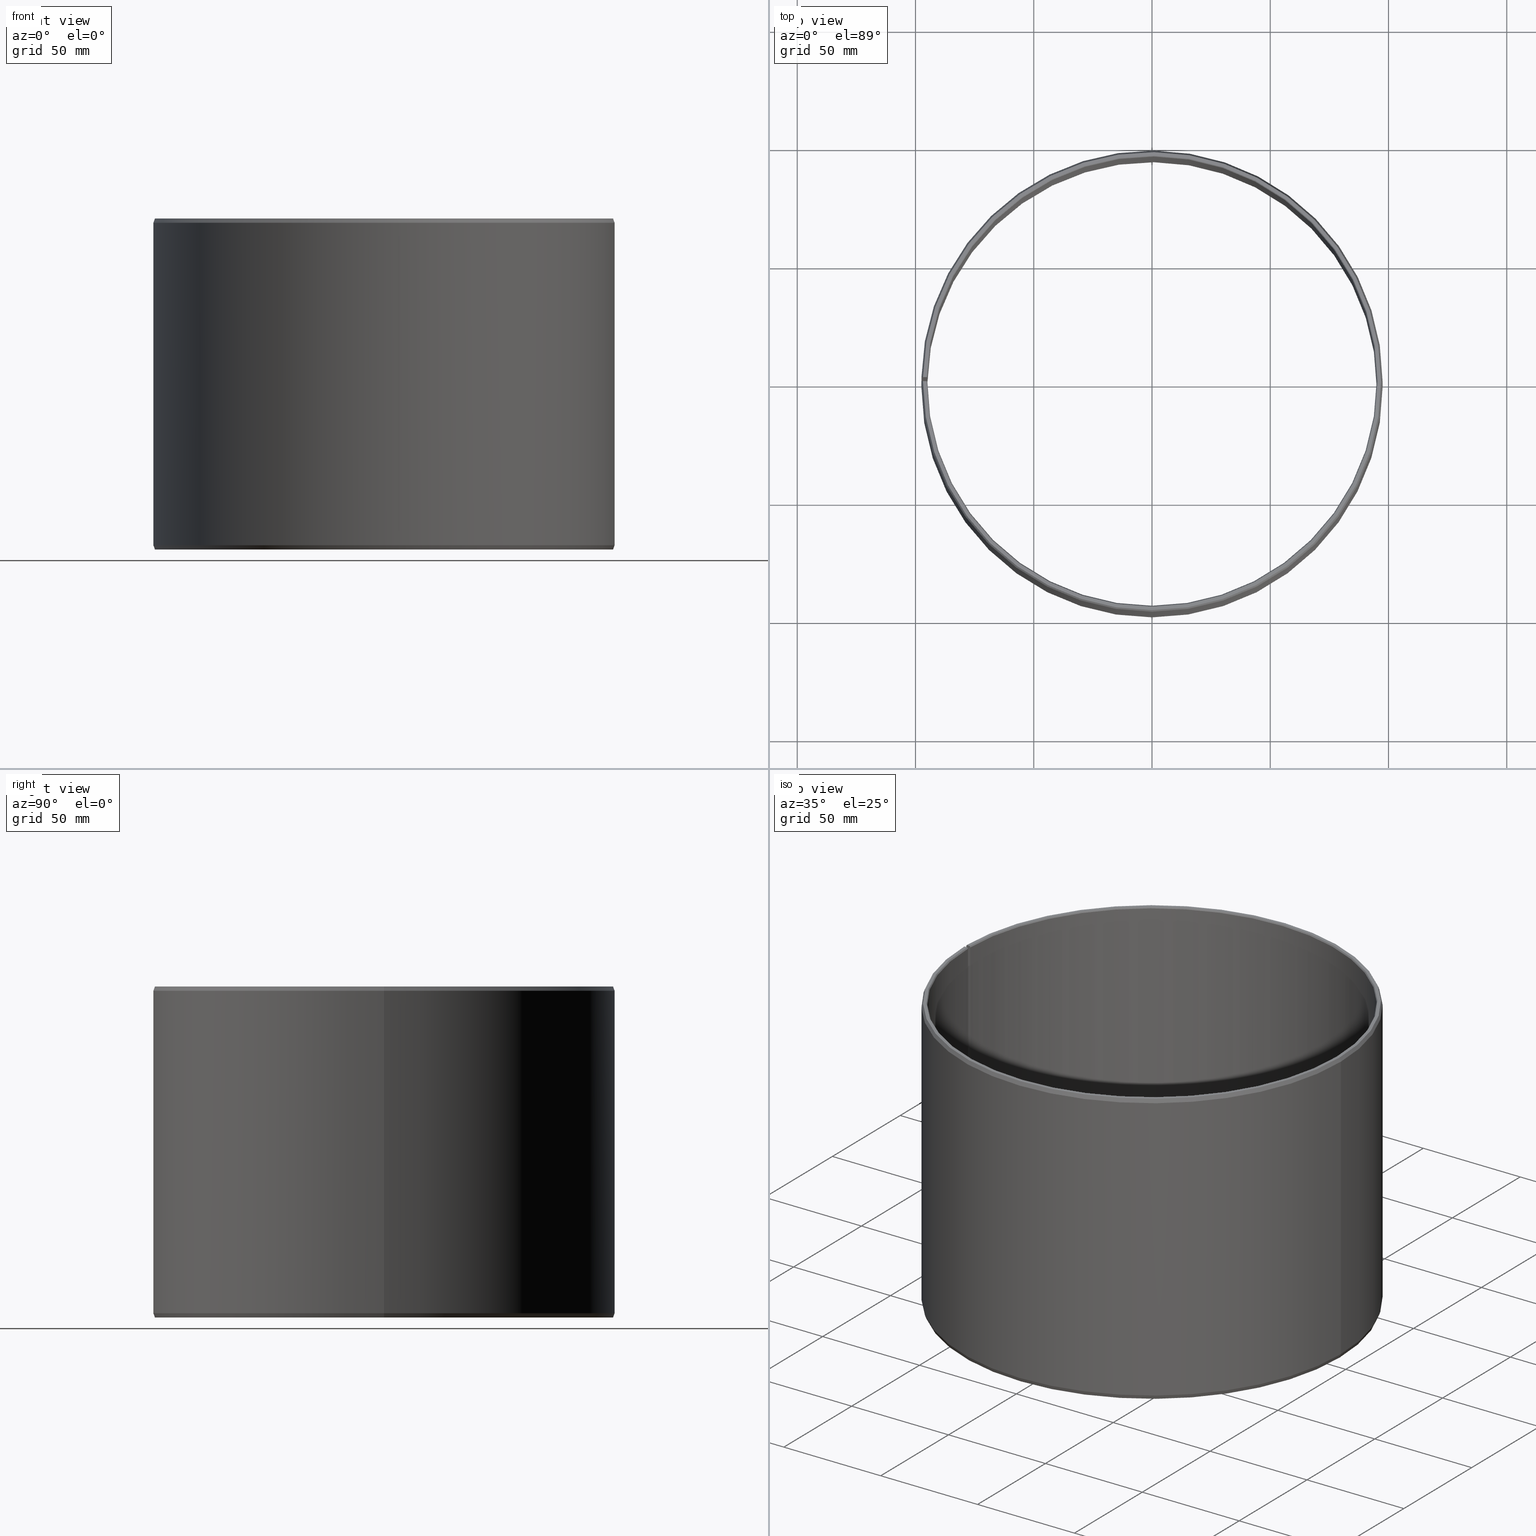
[diagram: canonical four-view strip — front | top / right | iso, engineering-drawing reading convention]
A machine part, canonical four-view strip (front | top / right | iso — engineering-drawing reading convention). The complete STEP part file that produces these views, byte-faithful:
ISO-10303-21;
HEADER;
FILE_DESCRIPTION(('STEP AP203'),'1');
FILE_NAME('400-BM190140LMB.stp','2016-09-19T10:14:07',(' '),(' '),'Spatial InterOp 3D',' ',' ');
FILE_SCHEMA(('CONFIG_CONTROL_DESIGN'));
ENDSEC;
DATA;
#1=DESIGN_CONTEXT('',#27,'design');
#2=APPLICATION_PROTOCOL_DEFINITION('INTERNATIONAL STANDARD','config_control_design',1994,#27);
#3=PRODUCT_CATEGORY_RELATIONSHIP('NONE','NONE',#28,#29);
#4=DATE_AND_TIME(#30,#31);
#5=DATE_TIME_ROLE('creation_date');
#6=DATE_TIME_ROLE('classification_date');
#7=PERSON_AND_ORGANIZATION_ROLE('creator');
#8=PERSON_AND_ORGANIZATION_ROLE('design_supplier');
#9=PERSON_AND_ORGANIZATION_ROLE('classification_officer');
#10=PERSON_AND_ORGANIZATION_ROLE('design_owner');
#11=APPROVAL_PERSON_ORGANIZATION(#32,#33,#34);
#12=APPROVAL_DATE_TIME(#4,#33);
#13=CC_DESIGN_APPROVAL(#33,(#35,#36,#37));
#14=CC_DESIGN_DATE_AND_TIME_ASSIGNMENT(#4,#5,(#37));
#15=CC_DESIGN_DATE_AND_TIME_ASSIGNMENT(#4,#6,(#35));
#16=CC_DESIGN_PERSON_AND_ORGANIZATION_ASSIGNMENT(#32,#10,(#38));
#17=CC_DESIGN_PERSON_AND_ORGANIZATION_ASSIGNMENT(#32,#7,(#37));
#18=CC_DESIGN_PERSON_AND_ORGANIZATION_ASSIGNMENT(#32,#7,(#36));
#19=CC_DESIGN_PERSON_AND_ORGANIZATION_ASSIGNMENT(#32,#8,(#36));
#20=CC_DESIGN_SECURITY_CLASSIFICATION(#35,(#36));
#21=CC_DESIGN_PERSON_AND_ORGANIZATION_ASSIGNMENT(#32,#9,(#35));
#22=SHAPE_DEFINITION_REPRESENTATION(#39,#40);
#23= (GEOMETRIC_REPRESENTATION_CONTEXT(3)GLOBAL_UNCERTAINTY_ASSIGNED_CONTEXT((#43))GLOBAL_UNIT_ASSIGNED_CONTEXT((#45,#46,#47))REPRESENTATION_CONTEXT('NONE','WORKSPACE'));
#27=APPLICATION_CONTEXT('CONFIGURATION CONTROLLED 3D DESIGNS OF MECHANICAL PARTS AND ASSEMBLIES');
#28=PRODUCT_CATEGORY('part','NONE');
#29=PRODUCT_RELATED_PRODUCT_CATEGORY('detail',' ',(#38));
#30=CALENDAR_DATE(2016,19,8);
#31=LOCAL_TIME(12,14,7.0,#49);
#32=PERSON_AND_ORGANIZATION(#50,#51);
#33=APPROVAL(#52,'SOLID MODEL');
#34=APPROVAL_ROLE('APPROVED');
#35=SECURITY_CLASSIFICATION('','',#53);
#36=PRODUCT_DEFINITION_FORMATION_WITH_SPECIFIED_SOURCE(' ','NONE',#38,.NOT_KNOWN.);
#37=PRODUCT_DEFINITION('NONE','NONE',#36,#1);
#38=PRODUCT('1','1','PART-1-DESC',(#54));
#39=PRODUCT_DEFINITION_SHAPE('NONE','NONE',#37);
#40=ADVANCED_BREP_SHAPE_REPRESENTATION('1',(#55,#56),#23);
#43=UNCERTAINTY_MEASURE_WITH_UNIT(LENGTH_MEASURE(1.0E-006),#45,'','');
#45= (CONVERSION_BASED_UNIT('MILLIMETRE',#59)LENGTH_UNIT()NAMED_UNIT(#62));
#46= (NAMED_UNIT(#64)PLANE_ANGLE_UNIT()SI_UNIT($,.RADIAN.));
#47= (NAMED_UNIT(#64)SOLID_ANGLE_UNIT()SI_UNIT($,.STERADIAN.));
#49=COORDINATED_UNIVERSAL_TIME_OFFSET(1,0,.AHEAD.);
#50=PERSON('','UNSPECIFIED',$,$,$,$);
#51=ORGANIZATION('UNSPECIFIED','UNSPECIFIED','UNSPECIFIED');
#52=APPROVAL_STATUS('approved');
#53=SECURITY_CLASSIFICATION_LEVEL('unclassified');
#54=MECHANICAL_CONTEXT('',#27,'mechanical');
#55=MANIFOLD_SOLID_BREP('1',#70);
#56=AXIS2_PLACEMENT_3D('',#71,#72,#73);
#59=LENGTH_MEASURE_WITH_UNIT(LENGTH_MEASURE(1.0),#74);
#62=DIMENSIONAL_EXPONENTS(1.0,0.0,0.0,0.0,0.0,0.0,0.0);
#64=DIMENSIONAL_EXPONENTS(0.0,0.0,0.0,0.0,0.0,0.0,0.0);
#70=CLOSED_SHELL('',(#75,#76,#77,#78,#79,#80,#81,#82,#83,#84,#85,#86,#87,#88,#89,#90));
#71=CARTESIAN_POINT('',(0.0,0.0,0.0));
#72=DIRECTION('',(0.0,0.0,1.0));
#73=DIRECTION('',(1.0,0.0,0.0));
#74= (NAMED_UNIT(#62)LENGTH_UNIT()SI_UNIT(.MILLI.,.METRE.));
#75=ADVANCED_FACE('',(#92),#93,.F.);
#76=ADVANCED_FACE('',(#94),#95,.F.);
#77=ADVANCED_FACE('',(#96),#97,.T.);
#78=ADVANCED_FACE('',(#98),#99,.T.);
#79=ADVANCED_FACE('',(#100),#101,.T.);
#80=ADVANCED_FACE('',(#102),#103,.F.);
#81=ADVANCED_FACE('',(#104),#105,.F.);
#82=ADVANCED_FACE('',(#106),#107,.T.);
#83=ADVANCED_FACE('',(#108),#109,.T.);
#84=ADVANCED_FACE('',(#110),#111,.T.);
#85=ADVANCED_FACE('',(#112),#113,.T.);
#86=ADVANCED_FACE('',(#114),#115,.T.);
#87=ADVANCED_FACE('',(#116),#117,.F.);
#88=ADVANCED_FACE('',(#118),#119,.F.);
#89=ADVANCED_FACE('',(#120),#121,.T.);
#90=ADVANCED_FACE('',(#122),#123,.F.);
#92=FACE_OUTER_BOUND('',#124,.T.);
#93=CYLINDRICAL_SURFACE('',#125,95.0);
#94=FACE_OUTER_BOUND('',#126,.T.);
#95=CONICAL_SURFACE('',#127,95.1732050807569,0.52359877559831);
#96=FACE_OUTER_BOUND('',#128,.T.);
#97=CONICAL_SURFACE('',#129,97.1724267891604,0.349065850398854);
#98=FACE_OUTER_BOUND('',#130,.T.);
#99=CYLINDRICAL_SURFACE('',#131,97.5);
#100=FACE_OUTER_BOUND('',#132,.T.);
#101=CONICAL_SURFACE('',#133,97.1724267891604,0.349065850398863);
#102=FACE_OUTER_BOUND('',#134,.T.);
#103=CONICAL_SURFACE('',#135,95.1732050807569,0.523598775598323);
#104=FACE_OUTER_BOUND('',#136,.T.);
#105=CONICAL_SURFACE('',#137,95.1732050807569,0.523598775598323);
#106=FACE_OUTER_BOUND('',#138,.T.);
#107=PLANE('',#139);
#108=FACE_OUTER_BOUND('',#140,.T.);
#109=CONICAL_SURFACE('',#141,97.1724267891604,0.349065850398863);
#110=FACE_OUTER_BOUND('',#142,.T.);
#111=CYLINDRICAL_SURFACE('',#143,97.5);
#112=FACE_OUTER_BOUND('',#144,.T.);
#113=CONICAL_SURFACE('',#145,97.1724267891604,0.349065850398854);
#114=FACE_OUTER_BOUND('',#146,.T.);
#115=PLANE('',#147);
#116=FACE_OUTER_BOUND('',#148,.T.);
#117=CONICAL_SURFACE('',#149,95.1732050807569,0.52359877559831);
#118=FACE_OUTER_BOUND('',#150,.T.);
#119=CYLINDRICAL_SURFACE('',#151,95.0);
#120=FACE_OUTER_BOUND('',#152,.T.);
#121=PLANE('',#153);
#122=FACE_OUTER_BOUND('',#154,.T.);
#123=PLANE('',#155);
#124=EDGE_LOOP('',(#156,#157,#158,#159));
#125=AXIS2_PLACEMENT_3D('',#160,#161,#162);
#126=EDGE_LOOP('',(#163,#164,#165,#166));
#127=AXIS2_PLACEMENT_3D('',#167,#168,#169);
#128=EDGE_LOOP('',(#170,#171,#172,#173));
#129=AXIS2_PLACEMENT_3D('',#174,#175,#176);
#130=EDGE_LOOP('',(#177,#178,#179,#180));
#131=AXIS2_PLACEMENT_3D('',#181,#182,#183);
#132=EDGE_LOOP('',(#184,#185,#186,#187));
#133=AXIS2_PLACEMENT_3D('',#188,#189,#190);
#134=EDGE_LOOP('',(#191,#192,#193,#194));
#135=AXIS2_PLACEMENT_3D('',#195,#196,#197);
#136=EDGE_LOOP('',(#198,#199,#200,#201));
#137=AXIS2_PLACEMENT_3D('',#202,#203,#204);
#138=EDGE_LOOP('',(#205,#206,#207,#208,#209,#210));
#139=AXIS2_PLACEMENT_3D('',#211,#212,#213);
#140=EDGE_LOOP('',(#214,#215,#216,#217));
#141=AXIS2_PLACEMENT_3D('',#218,#219,#220);
#142=EDGE_LOOP('',(#221,#222,#223,#224));
#143=AXIS2_PLACEMENT_3D('',#225,#226,#227);
#144=EDGE_LOOP('',(#228,#229,#230,#231));
#145=AXIS2_PLACEMENT_3D('',#232,#233,#234);
#146=EDGE_LOOP('',(#235,#236,#237,#238,#239,#240));
#147=AXIS2_PLACEMENT_3D('',#241,#242,#243);
#148=EDGE_LOOP('',(#244,#245,#246,#247));
#149=AXIS2_PLACEMENT_3D('',#248,#249,#250);
#150=EDGE_LOOP('',(#251,#252,#253,#254));
#151=AXIS2_PLACEMENT_3D('',#255,#256,#257);
#152=EDGE_LOOP('',(#258,#259,#260,#261,#262,#263,#264,#265));
#153=AXIS2_PLACEMENT_3D('',#266,#267,#268);
#154=EDGE_LOOP('',(#269,#270,#271,#272,#273,#274,#275,#276));
#155=AXIS2_PLACEMENT_3D('',#277,#278,#279);
#156=ORIENTED_EDGE('',*,*,#280,.F.);
#157=ORIENTED_EDGE('',*,*,#281,.T.);
#158=ORIENTED_EDGE('',*,*,#282,.T.);
#159=ORIENTED_EDGE('',*,*,#283,.F.);
#160=CARTESIAN_POINT('',(3.87628124059588E-014,-4.36093420968868E-014,70.0));
#161=DIRECTION('',(5.48707263966375E-016,-6.09939603923743E-016,1.0));
#162=DIRECTION('',(-1.0,1.89882151931499E-015,5.48707263966376E-016));
#163=ORIENTED_EDGE('',*,*,#284,.F.);
#164=ORIENTED_EDGE('',*,*,#285,.T.);
#165=ORIENTED_EDGE('',*,*,#286,.T.);
#166=ORIENTED_EDGE('',*,*,#281,.F.);
#167=CARTESIAN_POINT('',(7.70077087044151E-014,-8.62951304938438E-014,139.7));
#168=DIRECTION('',(5.48707263966375E-016,-6.09939603923743E-016,1.0));
#169=DIRECTION('',(-1.0,1.89882151931499E-015,5.48707263966376E-016));
#170=ORIENTED_EDGE('',*,*,#287,.F.);
#171=ORIENTED_EDGE('',*,*,#288,.F.);
#172=ORIENTED_EDGE('',*,*,#289,.F.);
#173=ORIENTED_EDGE('',*,*,#290,.T.);
#174=CARTESIAN_POINT('',(7.66784843460353E-014,-8.5965906135464E-014,139.1));
#175=DIRECTION('',(-5.48707263966375E-016,6.09939603923743E-016,-1.0));
#176=DIRECTION('',(-1.0,1.89882151931499E-015,5.48707263966376E-016));
#177=ORIENTED_EDGE('',*,*,#291,.F.);
#178=ORIENTED_EDGE('',*,*,#290,.F.);
#179=ORIENTED_EDGE('',*,*,#292,.F.);
#180=ORIENTED_EDGE('',*,*,#293,.T.);
#181=CARTESIAN_POINT('',(3.87628124059588E-014,-4.36093420968868E-014,70.0));
#182=DIRECTION('',(5.48707263966375E-016,-6.09939603923743E-016,1.0));
#183=DIRECTION('',(-1.0,1.89882151931499E-015,5.48707263966376E-016));
#184=ORIENTED_EDGE('',*,*,#294,.F.);
#185=ORIENTED_EDGE('',*,*,#293,.F.);
#186=ORIENTED_EDGE('',*,*,#295,.F.);
#187=ORIENTED_EDGE('',*,*,#296,.T.);
#188=CARTESIAN_POINT('',(8.47140465882374E-016,-1.25277805830959E-015,0.9));
#189=DIRECTION('',(5.48707263966375E-016,-6.09939603923743E-016,1.0));
#190=DIRECTION('',(-1.0,1.89882151931499E-015,5.48707263966376E-016));
#191=ORIENTED_EDGE('',*,*,#297,.F.);
#192=ORIENTED_EDGE('',*,*,#283,.T.);
#193=ORIENTED_EDGE('',*,*,#298,.T.);
#194=ORIENTED_EDGE('',*,*,#299,.F.);
#195=CARTESIAN_POINT('',(5.17916107502547E-016,-9.23553699929763E-016,0.299999999999995));
#196=DIRECTION('',(-5.48707263966375E-016,6.09939603923743E-016,-1.0));
#197=DIRECTION('',(-1.0,1.89882151931499E-015,5.48707263966376E-016));
#198=ORIENTED_EDGE('',*,*,#297,.T.);
#199=ORIENTED_EDGE('',*,*,#300,.F.);
#200=ORIENTED_EDGE('',*,*,#301,.F.);
#201=ORIENTED_EDGE('',*,*,#302,.T.);
#202=CARTESIAN_POINT('',(5.17916107502547E-016,-9.23553699929763E-016,0.299999999999995));
#203=DIRECTION('',(-5.48707263966375E-016,6.09939603923743E-016,-1.0));
#204=DIRECTION('',(-1.0,1.89882151931499E-015,5.48707263966376E-016));
#205=ORIENTED_EDGE('',*,*,#303,.T.);
#206=ORIENTED_EDGE('',*,*,#304,.F.);
#207=ORIENTED_EDGE('',*,*,#296,.F.);
#208=ORIENTED_EDGE('',*,*,#305,.F.);
#209=ORIENTED_EDGE('',*,*,#300,.T.);
#210=ORIENTED_EDGE('',*,*,#299,.T.);
#211=CARTESIAN_POINT('',(-96.0956318699173,1.82000131643306E-013,5.4822539655292E-014));
#212=DIRECTION('',(-6.71171943880888E-016,6.09939603923744E-016,-1.0));
#213=DIRECTION('',(1.0,-1.89882151931499E-015,-6.71171943880889E-016));
#214=ORIENTED_EDGE('',*,*,#294,.T.);
#215=ORIENTED_EDGE('',*,*,#304,.T.);
#216=ORIENTED_EDGE('',*,*,#306,.T.);
#217=ORIENTED_EDGE('',*,*,#307,.F.);
#218=CARTESIAN_POINT('',(8.47140465882374E-016,-1.25277805830959E-015,0.9));
#219=DIRECTION('',(5.48707263966375E-016,-6.09939603923743E-016,1.0));
#220=DIRECTION('',(-1.0,1.89882151931499E-015,5.48707263966376E-016));
#221=ORIENTED_EDGE('',*,*,#291,.T.);
#222=ORIENTED_EDGE('',*,*,#307,.T.);
#223=ORIENTED_EDGE('',*,*,#308,.T.);
#224=ORIENTED_EDGE('',*,*,#309,.F.);
#225=CARTESIAN_POINT('',(3.87628124059588E-014,-4.36093420968868E-014,70.0));
#226=DIRECTION('',(5.48707263966375E-016,-6.09939603923743E-016,1.0));
#227=DIRECTION('',(-1.0,1.89882151931499E-015,5.48707263966376E-016));
#228=ORIENTED_EDGE('',*,*,#287,.T.);
#229=ORIENTED_EDGE('',*,*,#309,.T.);
#230=ORIENTED_EDGE('',*,*,#310,.T.);
#231=ORIENTED_EDGE('',*,*,#311,.F.);
#232=CARTESIAN_POINT('',(7.66784843460353E-014,-8.5965906135464E-014,139.1));
#233=DIRECTION('',(-5.48707263966375E-016,6.09939603923743E-016,-1.0));
#234=DIRECTION('',(-1.0,1.89882151931499E-015,5.48707263966376E-016));
#235=ORIENTED_EDGE('',*,*,#312,.T.);
#236=ORIENTED_EDGE('',*,*,#285,.F.);
#237=ORIENTED_EDGE('',*,*,#313,.F.);
#238=ORIENTED_EDGE('',*,*,#314,.F.);
#239=ORIENTED_EDGE('',*,*,#288,.T.);
#240=ORIENTED_EDGE('',*,*,#311,.T.);
#241=CARTESIAN_POINT('',(-96.0956318699172,9.62993304910122E-014,140.0));
#242=DIRECTION('',(5.48707263966375E-016,-6.09939603923743E-016,1.0));
#243=DIRECTION('',(-1.0,1.89882151931499E-015,5.48707263966376E-016));
#244=ORIENTED_EDGE('',*,*,#284,.T.);
#245=ORIENTED_EDGE('',*,*,#315,.F.);
#246=ORIENTED_EDGE('',*,*,#316,.F.);
#247=ORIENTED_EDGE('',*,*,#313,.T.);
#248=CARTESIAN_POINT('',(7.70077087044151E-014,-8.62951304938438E-014,139.7));
#249=DIRECTION('',(5.48707263966375E-016,-6.09939603923743E-016,1.0));
#250=DIRECTION('',(-1.0,1.89882151931499E-015,5.48707263966376E-016));
#251=ORIENTED_EDGE('',*,*,#280,.T.);
#252=ORIENTED_EDGE('',*,*,#302,.F.);
#253=ORIENTED_EDGE('',*,*,#317,.F.);
#254=ORIENTED_EDGE('',*,*,#315,.T.);
#255=CARTESIAN_POINT('',(3.87628124059588E-014,-4.36093420968868E-014,70.0));
#256=DIRECTION('',(5.48707263966375E-016,-6.09939603923743E-016,1.0));
#257=DIRECTION('',(-1.0,1.89882151931499E-015,5.48707263966376E-016));
#258=ORIENTED_EDGE('',*,*,#298,.F.);
#259=ORIENTED_EDGE('',*,*,#282,.F.);
#260=ORIENTED_EDGE('',*,*,#286,.F.);
#261=ORIENTED_EDGE('',*,*,#312,.F.);
#262=ORIENTED_EDGE('',*,*,#310,.F.);
#263=ORIENTED_EDGE('',*,*,#308,.F.);
#264=ORIENTED_EDGE('',*,*,#306,.F.);
#265=ORIENTED_EDGE('',*,*,#303,.F.);
#266=CARTESIAN_POINT('',(-96.2303281806413,1.67970662645693,70.0000000000001));
#267=DIRECTION('',(-0.0174524064372855,-0.999847695156391,-6.03293180951926E-016));
#268=DIRECTION('',(5.48654509949674E-016,-6.12961879516416E-016,1.0));
#269=ORIENTED_EDGE('',*,*,#317,.T.);
#270=ORIENTED_EDGE('',*,*,#301,.T.);
#271=ORIENTED_EDGE('',*,*,#305,.T.);
#272=ORIENTED_EDGE('',*,*,#295,.T.);
#273=ORIENTED_EDGE('',*,*,#292,.T.);
#274=ORIENTED_EDGE('',*,*,#289,.T.);
#275=ORIENTED_EDGE('',*,*,#314,.T.);
#276=ORIENTED_EDGE('',*,*,#316,.T.);
#277=CARTESIAN_POINT('',(-96.2449867582977,1.41578303148813E-013,70.0000000000001));
#278=DIRECTION('',(-1.89882151931516E-015,-1.0,-6.12962339893744E-016));
#279=DIRECTION('',(5.48707263966375E-016,-6.12962339893745E-016,1.0));
#280=EDGE_CURVE('',#318,#319,#320,.T.);
#281=EDGE_CURVE('',#318,#321,#322,.T.);
#282=EDGE_CURVE('',#321,#323,#324,.T.);
#283=EDGE_CURVE('',#319,#323,#325,.T.);
#284=EDGE_CURVE('',#326,#318,#327,.T.);
#285=EDGE_CURVE('',#326,#328,#329,.T.);
#286=EDGE_CURVE('',#328,#321,#330,.T.);
#287=EDGE_CURVE('',#331,#332,#333,.T.);
#288=EDGE_CURVE('',#334,#331,#335,.T.);
#289=EDGE_CURVE('',#336,#334,#337,.T.);
#290=EDGE_CURVE('',#336,#332,#338,.T.);
#291=EDGE_CURVE('',#332,#339,#340,.T.);
#292=EDGE_CURVE('',#341,#336,#342,.T.);
#293=EDGE_CURVE('',#341,#339,#343,.T.);
#294=EDGE_CURVE('',#339,#344,#345,.T.);
#295=EDGE_CURVE('',#346,#341,#347,.T.);
#296=EDGE_CURVE('',#346,#344,#348,.T.);
#297=EDGE_CURVE('',#319,#349,#350,.T.);
#298=EDGE_CURVE('',#323,#351,#352,.T.);
#299=EDGE_CURVE('',#349,#351,#353,.T.);
#300=EDGE_CURVE('',#354,#349,#355,.T.);
#301=EDGE_CURVE('',#356,#354,#357,.T.);
#302=EDGE_CURVE('',#356,#319,#358,.T.);
#303=EDGE_CURVE('',#351,#359,#360,.T.);
#304=EDGE_CURVE('',#344,#359,#361,.T.);
#305=EDGE_CURVE('',#354,#346,#362,.T.);
#306=EDGE_CURVE('',#359,#363,#364,.T.);
#307=EDGE_CURVE('',#339,#363,#365,.T.);
#308=EDGE_CURVE('',#363,#366,#367,.T.);
#309=EDGE_CURVE('',#332,#366,#368,.T.);
#310=EDGE_CURVE('',#366,#369,#370,.T.);
#311=EDGE_CURVE('',#331,#369,#371,.T.);
#312=EDGE_CURVE('',#369,#328,#372,.T.);
#313=EDGE_CURVE('',#373,#326,#374,.T.);
#314=EDGE_CURVE('',#334,#373,#375,.T.);
#315=EDGE_CURVE('',#376,#318,#377,.T.);
#316=EDGE_CURVE('',#373,#376,#378,.T.);
#317=EDGE_CURVE('',#376,#356,#379,.T.);
#318=VERTEX_POINT('',#380);
#319=VERTEX_POINT('',#381);
#320=LINE('',#382,#383);
#321=VERTEX_POINT('',#384);
#322=CIRCLE('',#385,95.0);
#323=VERTEX_POINT('',#386);
#324=LINE('',#387,#388);
#325=CIRCLE('',#389,95.0);
#326=VERTEX_POINT('',#390);
#327=LINE('',#391,#392);
#328=VERTEX_POINT('',#393);
#329=CIRCLE('',#394,95.3464101615137);
#330=LINE('',#395,#396);
#331=VERTEX_POINT('',#397);
#332=VERTEX_POINT('',#398);
#333=LINE('',#399,#400);
#334=VERTEX_POINT('',#401);
#335=CIRCLE('',#402,96.8448535783209);
#336=VERTEX_POINT('',#403);
#337=LINE('',#404,#405);
#338=CIRCLE('',#406,97.5);
#339=VERTEX_POINT('',#407);
#340=LINE('',#408,#409);
#341=VERTEX_POINT('',#410);
#342=LINE('',#411,#412);
#343=CIRCLE('',#413,97.5);
#344=VERTEX_POINT('',#414);
#345=LINE('',#415,#416);
#346=VERTEX_POINT('',#417);
#347=LINE('',#418,#419);
#348=CIRCLE('',#420,96.8448535783209);
#349=VERTEX_POINT('',#421);
#350=LINE('',#422,#423);
#351=VERTEX_POINT('',#424);
#352=LINE('',#425,#426);
#353=CIRCLE('',#427,95.3464101615138);
#354=VERTEX_POINT('',#428);
#355=CIRCLE('',#429,95.3464101615138);
#356=VERTEX_POINT('',#430);
#357=LINE('',#431,#432);
#358=CIRCLE('',#433,95.0);
#359=VERTEX_POINT('',#434);
#360=LINE('',#435,#436);
#361=CIRCLE('',#437,96.8448535783209);
#362=LINE('',#438,#439);
#363=VERTEX_POINT('',#440);
#364=LINE('',#441,#442);
#365=CIRCLE('',#443,97.5);
#366=VERTEX_POINT('',#444);
#367=LINE('',#445,#446);
#368=CIRCLE('',#447,97.5);
#369=VERTEX_POINT('',#448);
#370=LINE('',#449,#450);
#371=CIRCLE('',#451,96.8448535783209);
#372=LINE('',#452,#453);
#373=VERTEX_POINT('',#454);
#374=CIRCLE('',#455,95.3464101615137);
#375=LINE('',#456,#457);
#376=VERTEX_POINT('',#458);
#377=CIRCLE('',#459,95.0);
#378=LINE('',#460,#461);
#379=LINE('',#462,#463);
#380=CARTESIAN_POINT('',(95.0,-2.7813433753949E-013,139.4));
#381=CARTESIAN_POINT('',(95.0,-1.9312872450793E-013,0.599999999999954));
#382=CARTESIAN_POINT('',(95.0,-2.3563153102371E-013,70.0));
#383=VECTOR('',#464,1.0);
#384=CARTESIAN_POINT('',(-94.9855310398571,1.65797861154203,139.4));
#385=AXIS2_PLACEMENT_3D('',#465,#466,#467);
#386=CARTESIAN_POINT('',(-94.9855310398572,1.65797861154212,0.600000000000059));
#387=CARTESIAN_POINT('',(-94.9855310398571,1.65797861154203,139.4));
#388=VECTOR('',#468,10.0);
#389=AXIS2_PLACEMENT_3D('',#469,#470,#471);
#390=CARTESIAN_POINT('',(95.3464101615138,-2.79200495380585E-013,140.0));
#391=CARTESIAN_POINT('',(95.1732050807569,-2.78667416460038E-013,139.7));
#392=VECTOR('',#472,1.0);
#393=CARTESIAN_POINT('',(-95.3318884414254,1.66402430247478,140.0));
#394=AXIS2_PLACEMENT_3D('',#473,#474,#475);
#395=CARTESIAN_POINT('',(-95.3318884414254,1.66402430247478,140.0));
#396=VECTOR('',#476,10.0);
#397=CARTESIAN_POINT('',(96.8448535783209,-2.82266017783278E-013,140.0));
#398=CARTESIAN_POINT('',(97.5000000000001,-2.82282627509384E-013,138.2));
#399=CARTESIAN_POINT('',(97.1724267891605,-2.82379191350054E-013,139.1));
#400=VECTOR('',#477,1.0);
#401=CARTESIAN_POINT('',(-96.8448535783208,9.7343370918827E-014,140.0));
#402=AXIS2_PLACEMENT_3D('',#478,#479,#480);
#403=CARTESIAN_POINT('',(-97.4999999999999,9.92439905125993E-014,138.2));
#404=CARTESIAN_POINT('',(-97.4999999999999,9.92439905125993E-014,138.2));
#405=VECTOR('',#481,9.99999999999999);
#406=AXIS2_PLACEMENT_3D('',#482,#483,#484);
#407=CARTESIAN_POINT('',(97.5,-1.98877128126739E-013,1.79999999999995));
#408=CARTESIAN_POINT('',(97.5,-2.40684746521784E-013,70.0));
#409=VECTOR('',#485,1.0);
#410=CARTESIAN_POINT('',(-97.5,1.82969445514614E-013,1.80000000000005));
#411=CARTESIAN_POINT('',(-97.5,1.82969445514614E-013,1.80000000000005));
#412=VECTOR('',#486,10.0);
#413=AXIS2_PLACEMENT_3D('',#487,#488,#489);
#414=CARTESIAN_POINT('',(96.8448535783209,-1.96454998419061E-013,-5.1696184704172E-014));
#415=CARTESIAN_POINT('',(97.1724267891604,-1.976660632729E-013,0.899999999999947));
#416=VECTOR('',#490,1.0);
#417=CARTESIAN_POINT('',(-96.8448535783209,1.83044172071121E-013,5.5325396245719E-014));
#418=CARTESIAN_POINT('',(-96.8448535783209,1.83044172071121E-013,5.5325396245719E-014));
#419=VECTOR('',#491,10.0);
#420=AXIS2_PLACEMENT_3D('',#492,#493,#494);
#421=CARTESIAN_POINT('',(95.3464101615138,-1.93462954824317E-013,-5.09294890679587E-014));
#422=CARTESIAN_POINT('',(95.1732050807569,-1.93295839666124E-013,0.299999999999943));
#423=VECTOR('',#495,1.0);
#424=CARTESIAN_POINT('',(-95.3318884414255,1.66402430247487,5.46733830285575E-014));
#425=CARTESIAN_POINT('',(-94.9855310398572,1.65797861154212,0.600000000000055));
#426=VECTOR('',#496,9.99999999999999);
#427=AXIS2_PLACEMENT_3D('',#497,#498,#499);
#428=CARTESIAN_POINT('',(-95.3464101615138,1.80956091215491E-013,5.43196830648651E-014));
#429=AXIS2_PLACEMENT_3D('',#500,#501,#502);
#430=CARTESIAN_POINT('',(-95.0,1.80144144307605E-013,0.600000000000054));
#431=CARTESIAN_POINT('',(-95.0,1.80144144307605E-013,0.600000000000054));
#432=VECTOR('',#503,9.99999999999999);
#433=AXIS2_PLACEMENT_3D('',#504,#505,#506);
#434=CARTESIAN_POINT('',(-96.8301036380423,1.69017574600826,5.55114153910367E-014));
#435=CARTESIAN_POINT('',(-95.3318884414255,1.66402430247486,5.53417609028623E-014));
#436=VECTOR('',#507,10.0);
#437=AXIS2_PLACEMENT_3D('',#508,#509,#510);
#438=CARTESIAN_POINT('',(-95.3464101615138,1.80956091215491E-013,5.43196830648651E-014));
#439=VECTOR('',#511,10.0);
#440=CARTESIAN_POINT('',(-97.4851502777482,1.70160962763533,1.80000000000005));
#441=CARTESIAN_POINT('',(-96.8301036380423,1.69017574600825,5.63632996587508E-014));
#442=VECTOR('',#512,10.0);
#443=AXIS2_PLACEMENT_3D('',#513,#514,#515);
#444=CARTESIAN_POINT('',(-97.4851502777481,1.70160962763525,138.2));
#445=CARTESIAN_POINT('',(-97.4851502777482,1.70160962763533,1.80000000000005));
#446=VECTOR('',#516,10.0);
#447=AXIS2_PLACEMENT_3D('',#517,#518,#519);
#448=CARTESIAN_POINT('',(-96.8301036380422,1.69017574600817,140.0));
#449=CARTESIAN_POINT('',(-97.4851502777481,1.70160962763524,138.2));
#450=VECTOR('',#520,9.99999999999999);
#451=AXIS2_PLACEMENT_3D('',#521,#522,#523);
#452=CARTESIAN_POINT('',(-96.8301036380422,1.69017574600817,140.0));
#453=VECTOR('',#524,10.0);
#454=CARTESIAN_POINT('',(-95.3464101615137,9.52552900631974E-014,140.0));
#455=AXIS2_PLACEMENT_3D('',#525,#526,#527);
#456=CARTESIAN_POINT('',(-96.8448535783208,9.7343370918827E-014,140.0));
#457=VECTOR('',#528,10.0);
#458=CARTESIAN_POINT('',(-94.9999999999999,9.51017918720707E-014,139.4));
#459=AXIS2_PLACEMENT_3D('',#529,#530,#531);
#460=CARTESIAN_POINT('',(-95.3464101615137,9.52552900631974E-014,140.0));
#461=VECTOR('',#532,10.0);
#462=CARTESIAN_POINT('',(-94.9999999999999,9.51017918720707E-014,139.4));
#463=VECTOR('',#533,10.0);
#464=DIRECTION('',(-5.48707263966375E-016,6.09939603923743E-016,-1.0));
#465=CARTESIAN_POINT('',(7.68430965252252E-014,-8.61305183146539E-014,139.4));
#466=DIRECTION('',(5.48707263966375E-016,-6.09939603923743E-016,1.0));
#467=DIRECTION('',(-1.0,1.89882151931499E-015,5.48707263966376E-016));
#468=DIRECTION('',(-8.04579354593488E-016,6.17163747650249E-016,-1.0));
#469=CARTESIAN_POINT('',(6.82528286692465E-016,-1.08816587911968E-015,0.600000000000006));
#470=DIRECTION('',(5.48707263966375E-016,-6.09939603923743E-016,1.0));
#471=DIRECTION('',(-1.0,1.89882151931499E-015,5.48707263966376E-016));
#472=DIRECTION('',(-0.50000000000001,1.53886629138706E-015,-0.866025403784433));
#473=CARTESIAN_POINT('',(7.71723208836051E-014,-8.64597426730337E-014,140.0));
#474=DIRECTION('',(5.48707263966375E-016,-6.09939603923743E-016,1.0));
#475=DIRECTION('',(-1.0,1.89882151931499E-015,5.48707263966376E-016));
#476=DIRECTION('',(0.499923847578205,-0.00872620321864242,-0.866025403784433));
#477=DIRECTION('',(0.342020143325657,-1.18164850630498E-016,-0.939692620785913));
#478=CARTESIAN_POINT('',(7.71723208836051E-014,-8.64597426730337E-014,140.0));
#479=DIRECTION('',(5.48707263966375E-016,-6.09939603923743E-016,1.0));
#480=DIRECTION('',(-1.0,1.89882151931499E-015,5.48707263966376E-016));
#481=DIRECTION('',(0.342020143325658,-1.16505137510678E-015,0.939692620785912));
#482=CARTESIAN_POINT('',(7.61846478084656E-014,-8.54720695978942E-014,138.2));
#483=DIRECTION('',(5.48707263966375E-016,-6.09939603923743E-016,1.0));
#484=DIRECTION('',(-1.0,1.89882151931499E-015,5.48707263966376E-016));
#485=DIRECTION('',(-5.48707263966375E-016,6.09939603923743E-016,-1.0));
#486=DIRECTION('',(8.09170143643831E-016,-6.1382298388574E-016,1.0));
#487=CARTESIAN_POINT('',(1.34097700345211E-015,-1.74661459587933E-015,1.8));
#488=DIRECTION('',(5.48707263966375E-016,-6.09939603923743E-016,1.0));
#489=DIRECTION('',(-1.0,1.89882151931499E-015,5.48707263966376E-016));
#490=DIRECTION('',(-0.342020143325666,1.26447634049496E-015,-0.939692620785909));
#491=DIRECTION('',(-0.342020143325665,1.3381904126514E-016,0.93969262078591));
#492=CARTESIAN_POINT('',(3.53303928312638E-016,-7.58941520739854E-016,1.40055521273414E-015));
#493=DIRECTION('',(5.48707263966375E-016,-6.09939603923743E-016,1.0));
#494=DIRECTION('',(-1.0,1.89882151931499E-015,5.48707263966376E-016));
#495=DIRECTION('',(0.500000000000021,-4.8241990784273E-016,-0.866025403784427));
#496=DIRECTION('',(-0.499923847578217,0.00872620321864357,-0.866025403784426));
#497=CARTESIAN_POINT('',(3.53303928312638E-016,-7.58941520739854E-016,1.40055521273414E-015));
#498=DIRECTION('',(5.48707263966375E-016,-6.09939603923743E-016,1.0));
#499=DIRECTION('',(-1.0,1.89882151931499E-015,5.48707263966376E-016));
#500=CARTESIAN_POINT('',(3.53303928312638E-016,-7.58941520739854E-016,1.40055521273414E-015));
#501=DIRECTION('',(5.48707263966375E-016,-6.09939603923743E-016,1.0));
#502=DIRECTION('',(-1.0,1.89882151931499E-015,5.48707263966376E-016));
#503=DIRECTION('',(-0.500000000000021,1.42460518949346E-015,-0.866025403784426));
#504=CARTESIAN_POINT('',(6.82528286692465E-016,-1.08816587911968E-015,0.600000000000006));
#505=DIRECTION('',(5.48707263966375E-016,-6.09939603923743E-016,1.0));
#506=DIRECTION('',(-1.0,1.89882151931499E-015,5.48707263966376E-016));
#507=DIRECTION('',(-0.999847695156391,0.0174524064372855,6.81733286976737E-016));
#508=CARTESIAN_POINT('',(3.53303928312638E-016,-7.58941520739854E-016,1.40055521273414E-015));
#509=DIRECTION('',(5.48707263966375E-016,-6.09939603923743E-016,1.0));
#510=DIRECTION('',(-1.0,1.89882151931499E-015,5.48707263966376E-016));
#511=DIRECTION('',(-1.0,1.89882151931499E-015,6.71171943880889E-016));
#512=DIRECTION('',(-0.341968052001225,0.00596907455105762,0.93969262078591));
#513=CARTESIAN_POINT('',(1.34097700345211E-015,-1.74661459587933E-015,1.8));
#514=DIRECTION('',(5.48707263966375E-016,-6.09939603923743E-016,1.0));
#515=DIRECTION('',(-1.0,1.89882151931499E-015,5.48707263966376E-016));
#516=DIRECTION('',(8.09062699560228E-016,-6.18368096466119E-016,1.0));
#517=CARTESIAN_POINT('',(7.61846478084656E-014,-8.54720695978942E-014,138.2));
#518=DIRECTION('',(5.48707263966375E-016,-6.09939603923743E-016,1.0));
#519=DIRECTION('',(-1.0,1.89882151931499E-015,5.48707263966376E-016));
#520=DIRECTION('',(0.341968052001217,-0.00596907455105851,0.939692620785912));
#521=CARTESIAN_POINT('',(7.71723208836051E-014,-8.64597426730337E-014,140.0));
#522=DIRECTION('',(5.48707263966375E-016,-6.09939603923743E-016,1.0));
#523=DIRECTION('',(-1.0,1.89882151931499E-015,5.48707263966376E-016));
#524=DIRECTION('',(0.999847695156391,-0.0174524064372855,-5.59268607062223E-016));
#525=CARTESIAN_POINT('',(7.71723208836051E-014,-8.64597426730337E-014,140.0));
#526=DIRECTION('',(5.48707263966375E-016,-6.09939603923743E-016,1.0));
#527=DIRECTION('',(-1.0,1.89882151931499E-015,5.48707263966376E-016));
#528=DIRECTION('',(1.0,-1.89882151931499E-015,-5.48707263966376E-016));
#529=CARTESIAN_POINT('',(7.68430965252252E-014,-8.61305183146539E-014,139.4));
#530=DIRECTION('',(5.48707263966375E-016,-6.09939603923743E-016,1.0));
#531=DIRECTION('',(-1.0,1.89882151931499E-015,5.48707263966376E-016));
#532=DIRECTION('',(0.500000000000009,-4.74216329821579E-016,-0.866025403784433));
#533=DIRECTION('',(-8.04666462727218E-016,6.12697063656587E-016,-1.0));
ENDSEC;
END-ISO-10303-21;
